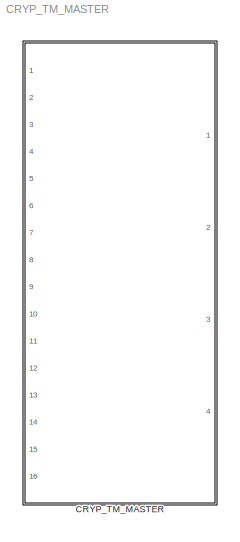
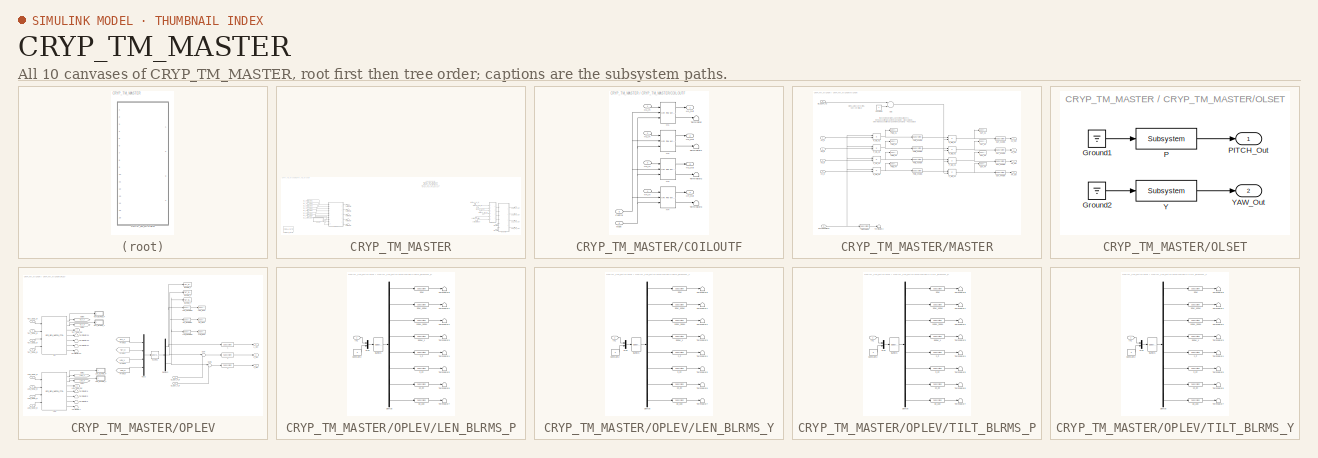
[diagram: thumbnail index - all 10 canvases of the model, root first then tree order]
MODEL CRYP_TM_MASTER
KIND library
BLOCK [SubSystem] CRYP_TM_MASTER
  Ports = [16, 4]
  RequestExecContextInheritance = off
  SID = 310
  Variant = off
BLOCK [Reference] CRYP_TM_MASTER/COILBAL_DATE  REF=VIS_LIB/COILBAL_DATE
  Ports = []
  SID = 1026
  SourceBlock = VIS_LIB/COILBAL_DATE
  SourceType = SubSystem
BLOCK [SubSystem] CRYP_TM_MASTER/COILOUTF
  Ports = [6, 4]
  RequestExecContextInheritance = off
  SID = 350
  Variant = off
BLOCK [Inport] CRYP_TM_MASTER/COILOUTF/Control
  IconDisplay = Port number
  Port = 5
  SID = 685
BLOCK [Reference] CRYP_TM_MASTER/COILOUTF/H1  REF=cdsFiltCtrl/IIR FM with control
  AttributesFormatString = %<Tag>
  Description = cdsFiltCntrl is the standard IIR filter module (exactly the same as cdsFilt) but with added control data output 'Ctrl'. Filter module digital signal output appears on the first output, which is called 'Val'. 'Ctrl' output has a bit pattern encoding the state of filter's on/off switches (FM1 through FM10). The bit values are:\n                                                                        ...<+4621ch>  <repeated x4 — deduplicated; at blocks: H1, H2, H3, H4>
  Ports = [3, 2]
  SID = 687
  SourceBlock = cdsFiltCtrl/IIR FM with control
  SourceType = SubSystem
  Tag = cdsFiltCtrl
BLOCK [Inport] CRYP_TM_MASTER/COILOUTF/H1_In
  IconDisplay = Port number
  SID = 681
BLOCK [Outport] CRYP_TM_MASTER/COILOUTF/H1_Out
  IconDisplay = Port number
  SID = 695
BLOCK [Reference] CRYP_TM_MASTER/COILOUTF/H2  REF=cdsFiltCtrl/IIR FM with control
  AttributesFormatString = %<Tag>
  Ports = [3, 2]
  SID = 688
  SourceBlock = cdsFiltCtrl/IIR FM with control
  SourceType = SubSystem
  Tag = cdsFiltCtrl
BLOCK [Inport] CRYP_TM_MASTER/COILOUTF/H2_In
  IconDisplay = Port number
  Port = 2
  SID = 682
BLOCK [Outport] CRYP_TM_MASTER/COILOUTF/H2_Out
  IconDisplay = Port number
  Port = 2
  SID = 696
BLOCK [Reference] CRYP_TM_MASTER/COILOUTF/H3  REF=cdsFiltCtrl/IIR FM with control
  AttributesFormatString = %<Tag>
  Ports = [3, 2]
  SID = 689
  SourceBlock = cdsFiltCtrl/IIR FM with control
  SourceType = SubSystem
  Tag = cdsFiltCtrl
BLOCK [Inport] CRYP_TM_MASTER/COILOUTF/H3_In
  IconDisplay = Port number
  Port = 3
  SID = 683
BLOCK [Outport] CRYP_TM_MASTER/COILOUTF/H3_Out
  IconDisplay = Port number
  Port = 3
  SID = 697
BLOCK [Reference] CRYP_TM_MASTER/COILOUTF/H4  REF=cdsFiltCtrl/IIR FM with control
  AttributesFormatString = %<Tag>
  Ports = [3, 2]
  SID = 690
  SourceBlock = cdsFiltCtrl/IIR FM with control
  SourceType = SubSystem
  Tag = cdsFiltCtrl
BLOCK [Inport] CRYP_TM_MASTER/COILOUTF/H4_In
  IconDisplay = Port number
  Port = 4
  SID = 684
BLOCK [Outport] CRYP_TM_MASTER/COILOUTF/H4_Out
  IconDisplay = Port number
  Port = 4
  SID = 698
BLOCK [Inport] CRYP_TM_MASTER/COILOUTF/Mask
  IconDisplay = Port number
  Port = 6
  SID = 686
BLOCK [Terminator] CRYP_TM_MASTER/COILOUTF/Terminator
  SID = 691
BLOCK [Terminator] CRYP_TM_MASTER/COILOUTF/Terminator1
  SID = 692
BLOCK [Terminator] CRYP_TM_MASTER/COILOUTF/Terminator2
  SID = 693
BLOCK [Terminator] CRYP_TM_MASTER/COILOUTF/Terminator3
  SID = 694
BLOCK [Outport] CRYP_TM_MASTER/COIL_H1_Out
  IconDisplay = Port number
  SID = 607
BLOCK [Outport] CRYP_TM_MASTER/COIL_H2_Out
  IconDisplay = Port number
  Port = 2
  SID = 608
BLOCK [Outport] CRYP_TM_MASTER/COIL_H3_Out
  IconDisplay = Port number
  Port = 3
  SID = 609
BLOCK [Outport] CRYP_TM_MASTER/COIL_H4_Out
  IconDisplay = Port number
  Port = 4
  SID = 610
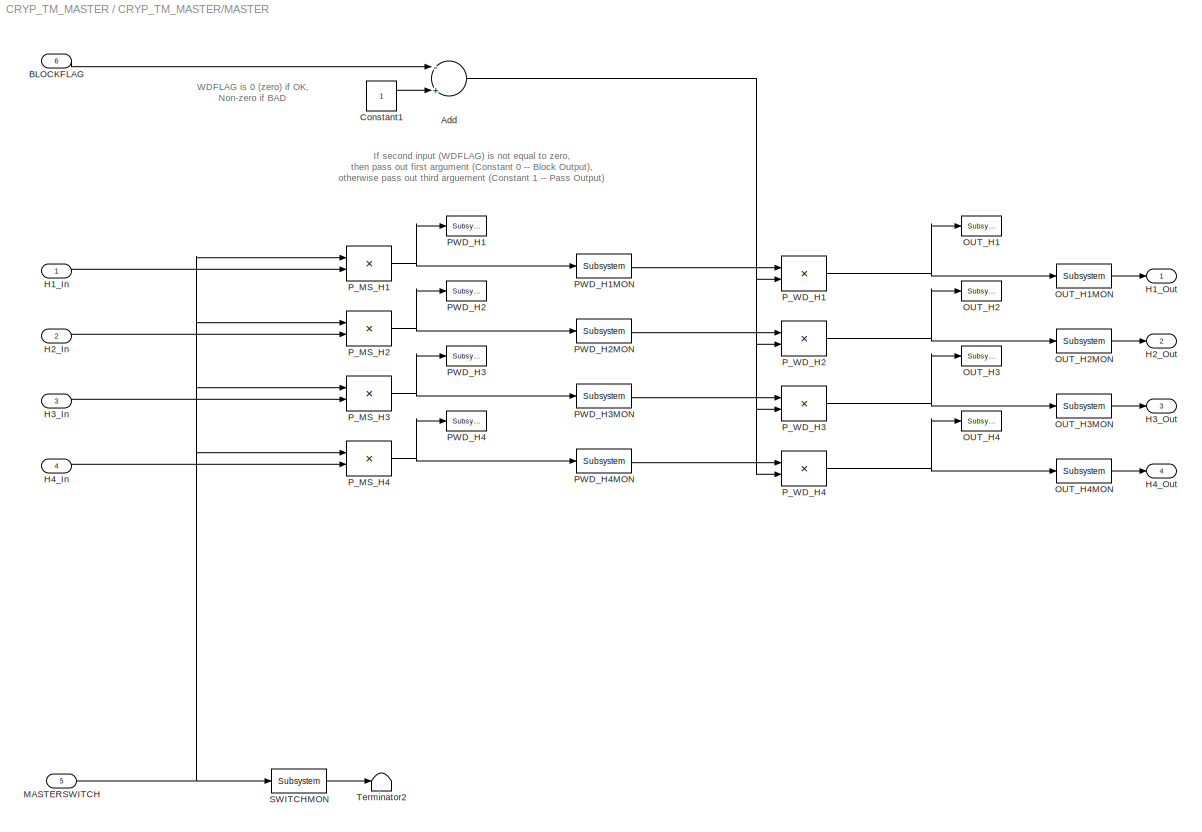
BLOCK [SubSystem] CRYP_TM_MASTER/MASTER
  Ports = [6, 4]
  RequestExecContextInheritance = off
  SID = 450
  Variant = off
BLOCK [Sum] CRYP_TM_MASTER/MASTER/Add
  InputSameDT = off
  Inputs = -+
  OutDataTypeStr = Inherit: Inherit via internal rule
  Ports = [2, 1]
  SID = 756
  SaturateOnIntegerOverflow = off
BLOCK [Inport] CRYP_TM_MASTER/MASTER/BLOCKFLAG
  IconDisplay = Port number
  Port = 6
  SID = 719
BLOCK [Constant] CRYP_TM_MASTER/MASTER/Constant1
  SID = 722
BLOCK [Inport] CRYP_TM_MASTER/MASTER/H1_In
  IconDisplay = Port number
  SID = 714
BLOCK [Outport] CRYP_TM_MASTER/MASTER/H1_Out
  IconDisplay = Port number
  SID = 749
BLOCK [Inport] CRYP_TM_MASTER/MASTER/H2_In
  IconDisplay = Port number
  Port = 2
  SID = 715
BLOCK [Outport] CRYP_TM_MASTER/MASTER/H2_Out
  IconDisplay = Port number
  Port = 2
  SID = 750
BLOCK [Inport] CRYP_TM_MASTER/MASTER/H3_In
  IconDisplay = Port number
  Port = 3
  SID = 716
BLOCK [Outport] CRYP_TM_MASTER/MASTER/H3_Out
  IconDisplay = Port number
  Port = 3
  SID = 751
BLOCK [Inport] CRYP_TM_MASTER/MASTER/H4_In
  IconDisplay = Port number
  Port = 4
  SID = 717
BLOCK [Outport] CRYP_TM_MASTER/MASTER/H4_Out
  IconDisplay = Port number
  Port = 4
  SID = 752
BLOCK [Inport] CRYP_TM_MASTER/MASTER/MASTERSWITCH
  IconDisplay = Port number
  Port = 5
  SID = 718
BLOCK [Reference] CRYP_TM_MASTER/MASTER/OUT_H1  REF=cdsTP/Subsystem
  AttributesFormatString = %<Tag>
  Ports = [1]
  SID = 723
  SourceBlock = cdsTP/Subsystem
  SourceType = SubSystem
  Tag = Test Point
BLOCK [Reference] CRYP_TM_MASTER/MASTER/OUT_H1MON  REF=cdsEpicsOut/Subsystem
  AttributesFormatString = %<Tag>
  Description = Purpose:                                          \nOutput a FE signal to an EPICS channel.           \n                                                  \nOperation:                                        \nTakes input value and passes it to EPICS record.  \n                                                  \nUsage:                                            \nName the part with the desired EPICS...<+14ch>  <repeated x44 — deduplicated; at blocks: OUT_H1MON, OUT_H2MON, OUT_H3MON, OUT_H4MON, PWD_H1MON, PWD_H2MON, PWD_H3MON, PWD_H4MON, SWITCHMON, 100M_300M, 10_30, 1_3, 300M_1, 30M, 30M_100M, 30_100, +4 more>
  Ports = [1, 1]
  SID = 724
  SourceBlock = cdsEpicsOut/Subsystem
  SourceType = SubSystem
  Tag = cdsEpicsOutput
BLOCK [Reference] CRYP_TM_MASTER/MASTER/OUT_H2  REF=cdsTP/Subsystem
  AttributesFormatString = %<Tag>
  Ports = [1]
  SID = 725
  SourceBlock = cdsTP/Subsystem
  SourceType = SubSystem
  Tag = Test Point
BLOCK [Reference] CRYP_TM_MASTER/MASTER/OUT_H2MON  REF=cdsEpicsOut/Subsystem
  AttributesFormatString = %<Tag>
  Ports = [1, 1]
  SID = 726
  SourceBlock = cdsEpicsOut/Subsystem
  SourceType = SubSystem
  Tag = cdsEpicsOutput
BLOCK [Reference] CRYP_TM_MASTER/MASTER/OUT_H3  REF=cdsTP/Subsystem
  AttributesFormatString = %<Tag>
  Ports = [1]
  SID = 727
  SourceBlock = cdsTP/Subsystem
  SourceType = SubSystem
  Tag = Test Point
BLOCK [Reference] CRYP_TM_MASTER/MASTER/OUT_H3MON  REF=cdsEpicsOut/Subsystem
  AttributesFormatString = %<Tag>
  Ports = [1, 1]
  SID = 728
  SourceBlock = cdsEpicsOut/Subsystem
  SourceType = SubSystem
  Tag = cdsEpicsOutput
BLOCK [Reference] CRYP_TM_MASTER/MASTER/OUT_H4  REF=cdsTP/Subsystem
  AttributesFormatString = %<Tag>
  Ports = [1]
  SID = 729
  SourceBlock = cdsTP/Subsystem
  SourceType = SubSystem
  Tag = Test Point
BLOCK [Reference] CRYP_TM_MASTER/MASTER/OUT_H4MON  REF=cdsEpicsOut/Subsystem
  AttributesFormatString = %<Tag>
  Ports = [1, 1]
  SID = 730
  SourceBlock = cdsEpicsOut/Subsystem
  SourceType = SubSystem
  Tag = cdsEpicsOutput
BLOCK [Reference] CRYP_TM_MASTER/MASTER/PWD_H1  REF=cdsTP/Subsystem
  AttributesFormatString = %<Tag>
  Ports = [1]
  SID = 731
  SourceBlock = cdsTP/Subsystem
  SourceType = SubSystem
  Tag = Test Point
BLOCK [Reference] CRYP_TM_MASTER/MASTER/PWD_H1MON  REF=cdsEpicsOut/Subsystem
  AttributesFormatString = %<Tag>
  Ports = [1, 1]
  SID = 732
  SourceBlock = cdsEpicsOut/Subsystem
  SourceType = SubSystem
  Tag = cdsEpicsOutput
BLOCK [Reference] CRYP_TM_MASTER/MASTER/PWD_H2  REF=cdsTP/Subsystem
  AttributesFormatString = %<Tag>
  Ports = [1]
  SID = 733
  SourceBlock = cdsTP/Subsystem
  SourceType = SubSystem
  Tag = Test Point
BLOCK [Reference] CRYP_TM_MASTER/MASTER/PWD_H2MON  REF=cdsEpicsOut/Subsystem
  AttributesFormatString = %<Tag>
  Ports = [1, 1]
  SID = 734
  SourceBlock = cdsEpicsOut/Subsystem
  SourceType = SubSystem
  Tag = cdsEpicsOutput
BLOCK [Reference] CRYP_TM_MASTER/MASTER/PWD_H3  REF=cdsTP/Subsystem
  AttributesFormatString = %<Tag>
  Ports = [1]
  SID = 735
  SourceBlock = cdsTP/Subsystem
  SourceType = SubSystem
  Tag = Test Point
BLOCK [Reference] CRYP_TM_MASTER/MASTER/PWD_H3MON  REF=cdsEpicsOut/Subsystem
  AttributesFormatString = %<Tag>
  Ports = [1, 1]
  SID = 736
  SourceBlock = cdsEpicsOut/Subsystem
  SourceType = SubSystem
  Tag = cdsEpicsOutput
BLOCK [Reference] CRYP_TM_MASTER/MASTER/PWD_H4  REF=cdsTP/Subsystem
  AttributesFormatString = %<Tag>
  Ports = [1]
  SID = 737
  SourceBlock = cdsTP/Subsystem
  SourceType = SubSystem
  Tag = Test Point
BLOCK [Reference] CRYP_TM_MASTER/MASTER/PWD_H4MON  REF=cdsEpicsOut/Subsystem
  AttributesFormatString = %<Tag>
  Ports = [1, 1]
  SID = 738
  SourceBlock = cdsEpicsOut/Subsystem
  SourceType = SubSystem
  Tag = cdsEpicsOutput
BLOCK [Product] CRYP_TM_MASTER/MASTER/P_MS_H1
  InputSameDT = off
  OutDataTypeStr = Inherit: Inherit via internal rule
  Ports = [2, 1]
  SID = 739
  SaturateOnIntegerOverflow = off
BLOCK [Product] CRYP_TM_MASTER/MASTER/P_MS_H2
  InputSameDT = off
  OutDataTypeStr = Inherit: Inherit via internal rule
  Ports = [2, 1]
  SID = 740
  SaturateOnIntegerOverflow = off
BLOCK [Product] CRYP_TM_MASTER/MASTER/P_MS_H3
  InputSameDT = off
  OutDataTypeStr = Inherit: Inherit via internal rule
  Ports = [2, 1]
  SID = 741
  SaturateOnIntegerOverflow = off
BLOCK [Product] CRYP_TM_MASTER/MASTER/P_MS_H4
  InputSameDT = off
  OutDataTypeStr = Inherit: Inherit via internal rule
  Ports = [2, 1]
  SID = 742
  SaturateOnIntegerOverflow = off
BLOCK [Product] CRYP_TM_MASTER/MASTER/P_WD_H1
  InputSameDT = off
  OutDataTypeStr = Inherit: Inherit via internal rule
  Ports = [2, 1]
  SID = 743
  SaturateOnIntegerOverflow = off
BLOCK [Product] CRYP_TM_MASTER/MASTER/P_WD_H2
  InputSameDT = off
  OutDataTypeStr = Inherit: Inherit via internal rule
  Ports = [2, 1]
  SID = 744
  SaturateOnIntegerOverflow = off
BLOCK [Product] CRYP_TM_MASTER/MASTER/P_WD_H3
  InputSameDT = off
  OutDataTypeStr = Inherit: Inherit via internal rule
  Ports = [2, 1]
  SID = 745
  SaturateOnIntegerOverflow = off
BLOCK [Product] CRYP_TM_MASTER/MASTER/P_WD_H4
  InputSameDT = off
  OutDataTypeStr = Inherit: Inherit via internal rule
  Ports = [2, 1]
  SID = 746
  SaturateOnIntegerOverflow = off
BLOCK [Reference] CRYP_TM_MASTER/MASTER/SWITCHMON  REF=cdsEpicsOut/Subsystem
  AttributesFormatString = %<Tag>
  Ports = [1, 1]
  SID = 747
  SourceBlock = cdsEpicsOut/Subsystem
  SourceType = SubSystem
  Tag = cdsEpicsOutput
BLOCK [Terminator] CRYP_TM_MASTER/MASTER/Terminator2
  SID = 748
BLOCK [Inport] CRYP_TM_MASTER/MODAL_H1_In
  IconDisplay = Port number
  Port = 9
  SID = 1015
BLOCK [Inport] CRYP_TM_MASTER/MODAL_H2_In
  IconDisplay = Port number
  Port = 10
  SID = 1016
BLOCK [Inport] CRYP_TM_MASTER/MODAL_H3_In
  IconDisplay = Port number
  Port = 11
  SID = 1017
BLOCK [Inport] CRYP_TM_MASTER/MODAL_H4_In
  IconDisplay = Port number
  Port = 12
  SID = 1024
BLOCK [SubSystem] CRYP_TM_MASTER/OLSET
  Ports = [0, 2]
  RequestExecContextInheritance = off
  SID = 858
  Variant = off
BLOCK [Ground] CRYP_TM_MASTER/OLSET/Ground1
  SID = 866
BLOCK [Ground] CRYP_TM_MASTER/OLSET/Ground2
  SID = 867
BLOCK [Reference] CRYP_TM_MASTER/OLSET/P  REF=cdsFilt/Subsystem
  AttributesFormatString = %<Tag>
  Description = Purpose:                                                                                                                                                                                                                                  \nStandard CDS IIR filter module.                                                                                                                                     ...<+1302ch>  <repeated x5 — deduplicated; at blocks: P, Y, L>
  Ports = [1, 1]
  SID = 869
  SourceBlock = cdsFilt/Subsystem
  SourceType = SubSystem
  Tag = cdsFilt
BLOCK [Outport] CRYP_TM_MASTER/OLSET/PITCH_Out
  IconDisplay = Port number
  SID = 872
BLOCK [Reference] CRYP_TM_MASTER/OLSET/Y  REF=cdsFilt/Subsystem
  AttributesFormatString = %<Tag>
  Ports = [1, 1]
  SID = 870
  SourceBlock = cdsFilt/Subsystem
  SourceType = SubSystem
  Tag = cdsFilt
BLOCK [Outport] CRYP_TM_MASTER/OLSET/YAW_Out
  IconDisplay = Port number
  Port = 2
  SID = 873
BLOCK [Inport] CRYP_TM_MASTER/OL_LEN_SEG1
  IconDisplay = Port number
  Port = 5
  SID = 315
BLOCK [Inport] CRYP_TM_MASTER/OL_LEN_SEG2
  IconDisplay = Port number
  Port = 6
  SID = 316
BLOCK [Inport] CRYP_TM_MASTER/OL_LEN_SEG3
  IconDisplay = Port number
  Port = 7
  SID = 317
BLOCK [Inport] CRYP_TM_MASTER/OL_LEN_SEG4
  IconDisplay = Port number
  Port = 8
  SID = 318
BLOCK [Inport] CRYP_TM_MASTER/OL_TILT_SEG1
  IconDisplay = Port number
  SID = 311
BLOCK [Inport] CRYP_TM_MASTER/OL_TILT_SEG2
  IconDisplay = Port number
  Port = 2
  SID = 312
BLOCK [Inport] CRYP_TM_MASTER/OL_TILT_SEG3
  IconDisplay = Port number
  Port = 3
  SID = 313
BLOCK [Inport] CRYP_TM_MASTER/OL_TILT_SEG4
  IconDisplay = Port number
  Port = 4
  SID = 314
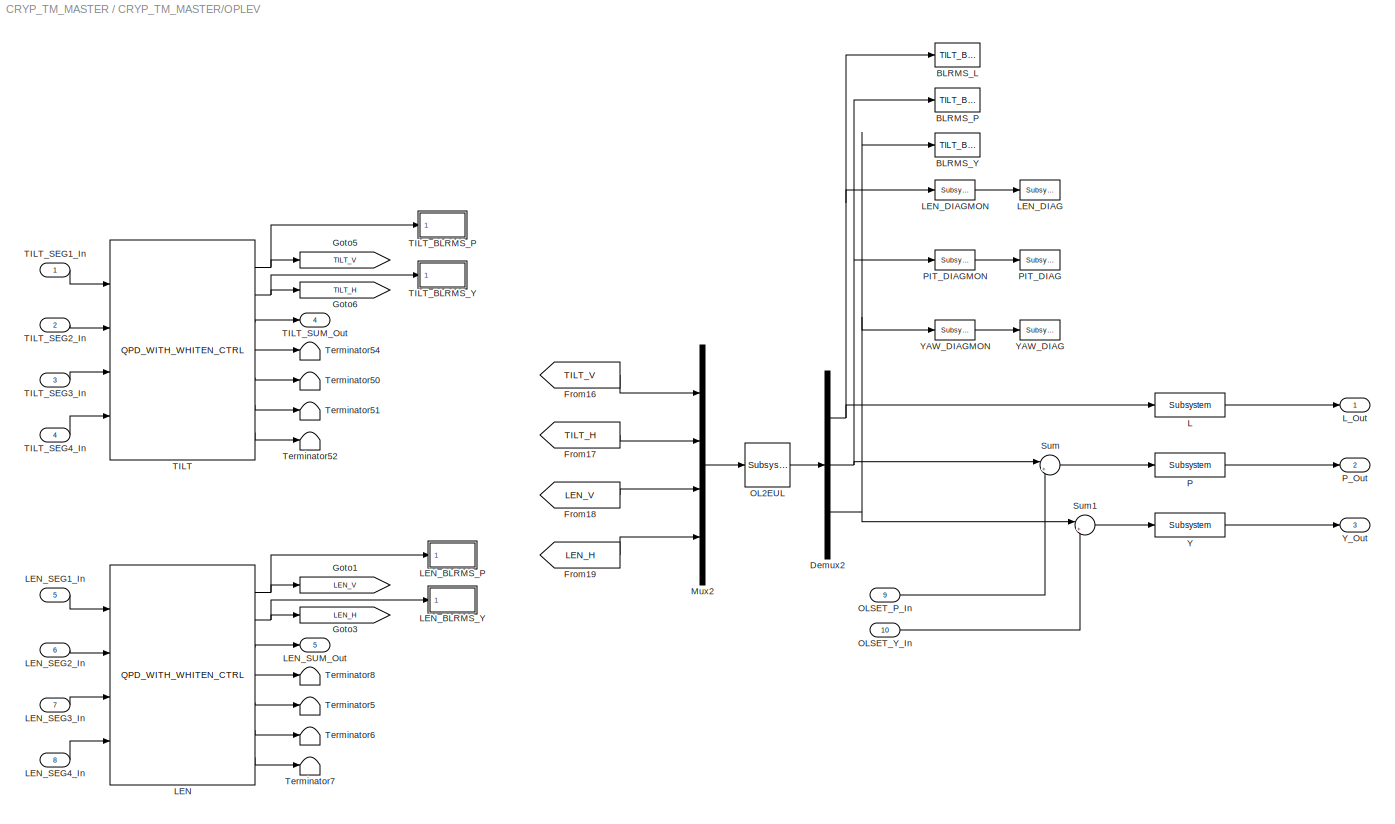
BLOCK [SubSystem] CRYP_TM_MASTER/OPLEV
  Ports = [10, 5]
  RequestExecContextInheritance = off
  SID = 457
  Variant = off
BLOCK [Reference] CRYP_TM_MASTER/OPLEV/BLRMS_L  REF=CRYP_TM_MASTER/CRYP_TM_MASTER/OPLEV/TILT_BLRMS_P
  Ports = [1]
  SID = 917
  SourceBlock = CRYP_TM_MASTER/CRYP_TM_MASTER/OPLEV/TILT_BLRMS_P
  SourceType = SubSystem
BLOCK [Reference] CRYP_TM_MASTER/OPLEV/BLRMS_P  REF=CRYP_TM_MASTER/CRYP_TM_MASTER/OPLEV/TILT_BLRMS_P
  Ports = [1]
  SID = 918
  SourceBlock = CRYP_TM_MASTER/CRYP_TM_MASTER/OPLEV/TILT_BLRMS_P
  SourceType = SubSystem
BLOCK [Reference] CRYP_TM_MASTER/OPLEV/BLRMS_Y  REF=CRYP_TM_MASTER/CRYP_TM_MASTER/OPLEV/TILT_BLRMS_P
  Ports = [1]
  SID = 919
  SourceBlock = CRYP_TM_MASTER/CRYP_TM_MASTER/OPLEV/TILT_BLRMS_P
  SourceType = SubSystem
BLOCK [Demux] CRYP_TM_MASTER/OPLEV/Demux2
  DisplayOption = bar
  Outputs = 3
  Ports = [1, 3]
  SID = 466
BLOCK [From] CRYP_TM_MASTER/OPLEV/From16
  CloseFcn = tagdialog Close
  GotoTag = TILT_V
  SID = 467
BLOCK [From] CRYP_TM_MASTER/OPLEV/From17
  CloseFcn = tagdialog Close
  GotoTag = TILT_H
  SID = 468
BLOCK [From] CRYP_TM_MASTER/OPLEV/From18
  CloseFcn = tagdialog Close
  GotoTag = LEN_V
  SID = 469
BLOCK [From] CRYP_TM_MASTER/OPLEV/From19
  CloseFcn = tagdialog Close
  GotoTag = LEN_H
  SID = 470
BLOCK [Goto] CRYP_TM_MASTER/OPLEV/Goto1
  GotoTag = LEN_V
  SID = 471
BLOCK [Goto] CRYP_TM_MASTER/OPLEV/Goto3
  GotoTag = LEN_H
  SID = 472
BLOCK [Goto] CRYP_TM_MASTER/OPLEV/Goto5
  GotoTag = TILT_V
  SID = 473
BLOCK [Goto] CRYP_TM_MASTER/OPLEV/Goto6
  GotoTag = TILT_H
  SID = 474
BLOCK [Reference] CRYP_TM_MASTER/OPLEV/L  REF=cdsFilt/Subsystem
  AttributesFormatString = %<Tag>
  Ports = [1, 1]
  SID = 854
  SourceBlock = cdsFilt/Subsystem
  SourceType = SubSystem
  Tag = cdsFilt
BLOCK [Reference] CRYP_TM_MASTER/OPLEV/LEN  REF=QPD/QPD_WITH_WHITEN_CTRL
  Ports = [4, 7]
  SID = 475
  SourceBlock = QPD/QPD_WITH_WHITEN_CTRL
  SourceType = SubSystem
BLOCK [SubSystem] CRYP_TM_MASTER/OPLEV/LEN_BLRMS_P
  Ports = [1]
  RequestExecContextInheritance = off
  SID = 959
  Variant = off
BLOCK [Reference] CRYP_TM_MASTER/OPLEV/LEN_BLRMS_P/100M_300M  REF=cdsEpicsOut/Subsystem
  AttributesFormatString = %<Tag>
  Ports = [1, 1]
  SID = 961
  SourceBlock = cdsEpicsOut/Subsystem
  SourceType = SubSystem
  Tag = cdsEpicsOutput
BLOCK [Reference] CRYP_TM_MASTER/OPLEV/LEN_BLRMS_P/10_30  REF=cdsEpicsOut/Subsystem
  AttributesFormatString = %<Tag>
  Ports = [1, 1]
  SID = 962
  SourceBlock = cdsEpicsOut/Subsystem
  SourceType = SubSystem
  Tag = cdsEpicsOutput
BLOCK [Reference] CRYP_TM_MASTER/OPLEV/LEN_BLRMS_P/1_3  REF=cdsEpicsOut/Subsystem
  AttributesFormatString = %<Tag>
  Ports = [1, 1]
  SID = 963
  SourceBlock = cdsEpicsOut/Subsystem
  SourceType = SubSystem
  Tag = cdsEpicsOutput
BLOCK [Reference] CRYP_TM_MASTER/OPLEV/LEN_BLRMS_P/300M_1  REF=cdsEpicsOut/Subsystem
  AttributesFormatString = %<Tag>
  Ports = [1, 1]
  SID = 964
  SourceBlock = cdsEpicsOut/Subsystem
  SourceType = SubSystem
  Tag = cdsEpicsOutput
BLOCK [Reference] CRYP_TM_MASTER/OPLEV/LEN_BLRMS_P/30M  REF=cdsEpicsOut/Subsystem
  AttributesFormatString = %<Tag>
  Ports = [1, 1]
  SID = 965
  SourceBlock = cdsEpicsOut/Subsystem
  SourceType = SubSystem
  Tag = cdsEpicsOutput
BLOCK [Reference] CRYP_TM_MASTER/OPLEV/LEN_BLRMS_P/30M_100M  REF=cdsEpicsOut/Subsystem
  AttributesFormatString = %<Tag>
  Ports = [1, 1]
  SID = 966
  SourceBlock = cdsEpicsOut/Subsystem
  SourceType = SubSystem
  Tag = cdsEpicsOutput
BLOCK [Reference] CRYP_TM_MASTER/OPLEV/LEN_BLRMS_P/30_100  REF=cdsEpicsOut/Subsystem
  AttributesFormatString = %<Tag>
  Ports = [1, 1]
  SID = 967
  SourceBlock = cdsEpicsOut/Subsystem
  SourceType = SubSystem
  Tag = cdsEpicsOutput
BLOCK [Reference] CRYP_TM_MASTER/OPLEV/LEN_BLRMS_P/3_10  REF=cdsEpicsOut/Subsystem
  AttributesFormatString = %<Tag>
  Ports = [1, 1]
  SID = 968
  SourceBlock = cdsEpicsOut/Subsystem
  SourceType = SubSystem
  Tag = cdsEpicsOutput
BLOCK [Reference] CRYP_TM_MASTER/OPLEV/LEN_BLRMS_P/BLRMS  REF=cdsFunctionCall/Subsystem
  AttributesFormatString = %<Tag>\\n%<Description>
  Description = inline BLRMS <path>
  Ports = [1, 1]
  SID = 969
  SourceBlock = cdsFunctionCall/Subsystem
  SourceType = SubSystem
  Tag = cdsFunctionCall
BLOCK [Constant] CRYP_TM_MASTER/OPLEV/LEN_BLRMS_P/Constant2
  SID = 970
  Value = 2
BLOCK [Demux] CRYP_TM_MASTER/OPLEV/LEN_BLRMS_P/Demux
  DisplayOption = bar
  Outputs = 8
  Ports = [1, 8]
  SID = 971
BLOCK [Inport] CRYP_TM_MASTER/OPLEV/LEN_BLRMS_P/In1
  IconDisplay = Port number
  SID = 960
BLOCK [Mux] CRYP_TM_MASTER/OPLEV/LEN_BLRMS_P/Mux
  DisplayOption = bar
  Inputs = 2
  Ports = [2, 1]
  SID = 972
BLOCK [Terminator] CRYP_TM_MASTER/OPLEV/LEN_BLRMS_P/Terminator1
  SID = 973
BLOCK [Terminator] CRYP_TM_MASTER/OPLEV/LEN_BLRMS_P/Terminator2
  SID = 974
BLOCK [Terminator] CRYP_TM_MASTER/OPLEV/LEN_BLRMS_P/Terminator3
  SID = 975
BLOCK [Terminator] CRYP_TM_MASTER/OPLEV/LEN_BLRMS_P/Terminator4
  SID = 976
BLOCK [Terminator] CRYP_TM_MASTER/OPLEV/LEN_BLRMS_P/Terminator5
  SID = 977
BLOCK [Terminator] CRYP_TM_MASTER/OPLEV/LEN_BLRMS_P/Terminator6
  SID = 978
BLOCK [Terminator] CRYP_TM_MASTER/OPLEV/LEN_BLRMS_P/Terminator7
  SID = 979
BLOCK [Terminator] CRYP_TM_MASTER/OPLEV/LEN_BLRMS_P/Terminator8
  SID = 980
BLOCK [SubSystem] CRYP_TM_MASTER/OPLEV/LEN_BLRMS_Y
  Ports = [1]
  RequestExecContextInheritance = off
  SID = 981
  Variant = off
BLOCK [Reference] CRYP_TM_MASTER/OPLEV/LEN_BLRMS_Y/100M_300M  REF=cdsEpicsOut/Subsystem
  AttributesFormatString = %<Tag>
  Ports = [1, 1]
  SID = 983
  SourceBlock = cdsEpicsOut/Subsystem
  SourceType = SubSystem
  Tag = cdsEpicsOutput
BLOCK [Reference] CRYP_TM_MASTER/OPLEV/LEN_BLRMS_Y/10_30  REF=cdsEpicsOut/Subsystem
  AttributesFormatString = %<Tag>
  Ports = [1, 1]
  SID = 984
  SourceBlock = cdsEpicsOut/Subsystem
  SourceType = SubSystem
  Tag = cdsEpicsOutput
BLOCK [Reference] CRYP_TM_MASTER/OPLEV/LEN_BLRMS_Y/1_3  REF=cdsEpicsOut/Subsystem
  AttributesFormatString = %<Tag>
  Ports = [1, 1]
  SID = 985
  SourceBlock = cdsEpicsOut/Subsystem
  SourceType = SubSystem
  Tag = cdsEpicsOutput
BLOCK [Reference] CRYP_TM_MASTER/OPLEV/LEN_BLRMS_Y/300M_1  REF=cdsEpicsOut/Subsystem
  AttributesFormatString = %<Tag>
  Ports = [1, 1]
  SID = 986
  SourceBlock = cdsEpicsOut/Subsystem
  SourceType = SubSystem
  Tag = cdsEpicsOutput
BLOCK [Reference] CRYP_TM_MASTER/OPLEV/LEN_BLRMS_Y/30M  REF=cdsEpicsOut/Subsystem
  AttributesFormatString = %<Tag>
  Ports = [1, 1]
  SID = 987
  SourceBlock = cdsEpicsOut/Subsystem
  SourceType = SubSystem
  Tag = cdsEpicsOutput
BLOCK [Reference] CRYP_TM_MASTER/OPLEV/LEN_BLRMS_Y/30M_100M  REF=cdsEpicsOut/Subsystem
  AttributesFormatString = %<Tag>
  Ports = [1, 1]
  SID = 988
  SourceBlock = cdsEpicsOut/Subsystem
  SourceType = SubSystem
  Tag = cdsEpicsOutput
BLOCK [Reference] CRYP_TM_MASTER/OPLEV/LEN_BLRMS_Y/30_100  REF=cdsEpicsOut/Subsystem
  AttributesFormatString = %<Tag>
  Ports = [1, 1]
  SID = 989
  SourceBlock = cdsEpicsOut/Subsystem
  SourceType = SubSystem
  Tag = cdsEpicsOutput
BLOCK [Reference] CRYP_TM_MASTER/OPLEV/LEN_BLRMS_Y/3_10  REF=cdsEpicsOut/Subsystem
  AttributesFormatString = %<Tag>
  Ports = [1, 1]
  SID = 990
  SourceBlock = cdsEpicsOut/Subsystem
  SourceType = SubSystem
  Tag = cdsEpicsOutput
BLOCK [Reference] CRYP_TM_MASTER/OPLEV/LEN_BLRMS_Y/BLRMS  REF=cdsFunctionCall/Subsystem
  AttributesFormatString = %<Tag>\\n%<Description>
  Description = inline BLRMS <path>
  Ports = [1, 1]
  SID = 991
  SourceBlock = cdsFunctionCall/Subsystem
  SourceType = SubSystem
  Tag = cdsFunctionCall
BLOCK [Constant] CRYP_TM_MASTER/OPLEV/LEN_BLRMS_Y/Constant2
  SID = 992
  Value = 2
BLOCK [Demux] CRYP_TM_MASTER/OPLEV/LEN_BLRMS_Y/Demux
  DisplayOption = bar
  Outputs = 8
  Ports = [1, 8]
  SID = 993
BLOCK [Inport] CRYP_TM_MASTER/OPLEV/LEN_BLRMS_Y/In1
  IconDisplay = Port number
  SID = 982
BLOCK [Mux] CRYP_TM_MASTER/OPLEV/LEN_BLRMS_Y/Mux
  DisplayOption = bar
  Inputs = 2
  Ports = [2, 1]
  SID = 994
BLOCK [Terminator] CRYP_TM_MASTER/OPLEV/LEN_BLRMS_Y/Terminator1
  SID = 995
BLOCK [Terminator] CRYP_TM_MASTER/OPLEV/LEN_BLRMS_Y/Terminator2
  SID = 996
BLOCK [Terminator] CRYP_TM_MASTER/OPLEV/LEN_BLRMS_Y/Terminator3
  SID = 997
BLOCK [Terminator] CRYP_TM_MASTER/OPLEV/LEN_BLRMS_Y/Terminator4
  SID = 998
BLOCK [Terminator] CRYP_TM_MASTER/OPLEV/LEN_BLRMS_Y/Terminator5
  SID = 999
BLOCK [Terminator] CRYP_TM_MASTER/OPLEV/LEN_BLRMS_Y/Terminator6
  SID = 1000
BLOCK [Terminator] CRYP_TM_MASTER/OPLEV/LEN_BLRMS_Y/Terminator7
  SID = 1001
BLOCK [Terminator] CRYP_TM_MASTER/OPLEV/LEN_BLRMS_Y/Terminator8
  SID = 1002
BLOCK [Reference] CRYP_TM_MASTER/OPLEV/LEN_DIAG  REF=cdsTP/Subsystem
  AttributesFormatString = %<Tag>
  Ports = [1]
  SID = 848
  SourceBlock = cdsTP/Subsystem
  SourceType = SubSystem
  Tag = Test Point
BLOCK [Reference] CRYP_TM_MASTER/OPLEV/LEN_DIAGMON  REF=cdsEpicsOut/Subsystem
  AttributesFormatString = %<Tag>
  Ports = [1, 1]
  SID = 849
  SourceBlock = cdsEpicsOut/Subsystem
  SourceType = SubSystem
  Tag = cdsEpicsOutput
BLOCK [Inport] CRYP_TM_MASTER/OPLEV/LEN_SEG1_In
  IconDisplay = Port number
  Port = 5
  SID = 462
BLOCK [Inport] CRYP_TM_MASTER/OPLEV/LEN_SEG2_In
  IconDisplay = Port number
  Port = 6
  SID = 463
BLOCK [Inport] CRYP_TM_MASTER/OPLEV/LEN_SEG3_In
  IconDisplay = Port number
  Port = 7
  SID = 464
BLOCK [Inport] CRYP_TM_MASTER/OPLEV/LEN_SEG4_In
  IconDisplay = Port number
  Port = 8
  SID = 465
BLOCK [Outport] CRYP_TM_MASTER/OPLEV/LEN_SUM_Out
  IconDisplay = Port number
  Port = 5
  SID = 537
BLOCK [Outport] CRYP_TM_MASTER/OPLEV/L_Out
  IconDisplay = Port number
  SID = 533
BLOCK [Mux] CRYP_TM_MASTER/OPLEV/Mux2
  DisplayOption = bar
  Ports = [4, 1]
  SID = 478
BLOCK [Reference] CRYP_TM_MASTER/OPLEV/OL2EUL  REF=cdsMuxMatrix/Subsystem
  AttributesFormatString = %<Tag>
  Description = Any size matrix. Inputs and outputs must be connected using Mux and Demux parts.
  Ports = [1, 1]
  SID = 479
  SourceBlock = cdsMuxMatrix/Subsystem
  SourceType = SubSystem
  Tag = cdsMuxMatrix
BLOCK [Inport] CRYP_TM_MASTER/OPLEV/OLSET_P_In
  IconDisplay = Port number
  Port = 9
  SID = 861
BLOCK [Inport] CRYP_TM_MASTER/OPLEV/OLSET_Y_In
  IconDisplay = Port number
  Port = 10
  SID = 862
BLOCK [Reference] CRYP_TM_MASTER/OPLEV/P  REF=cdsFilt/Subsystem
  AttributesFormatString = %<Tag>
  Ports = [1, 1]
  SID = 845
  SourceBlock = cdsFilt/Subsystem
  SourceType = SubSystem
  Tag = cdsFilt
BLOCK [Reference] CRYP_TM_MASTER/OPLEV/PIT_DIAG  REF=cdsTP/Subsystem
  AttributesFormatString = %<Tag>
  Ports = [1]
  SID = 850
  SourceBlock = cdsTP/Subsystem
  SourceType = SubSystem
  Tag = Test Point
BLOCK [Reference] CRYP_TM_MASTER/OPLEV/PIT_DIAGMON  REF=cdsEpicsOut/Subsystem
  AttributesFormatString = %<Tag>
  Ports = [1, 1]
  SID = 851
  SourceBlock = cdsEpicsOut/Subsystem
  SourceType = SubSystem
  Tag = cdsEpicsOutput
BLOCK [Outport] CRYP_TM_MASTER/OPLEV/P_Out
  IconDisplay = Port number
  Port = 2
  SID = 534
BLOCK [Sum] CRYP_TM_MASTER/OPLEV/Sum
  IconShape = round
  InputSameDT = off
  Inputs = |+-
  OutDataTypeStr = Inherit: Inherit via internal rule
  Ports = [2, 1]
  SID = 874
  SaturateOnIntegerOverflow = off
BLOCK [Sum] CRYP_TM_MASTER/OPLEV/Sum1
  IconShape = round
  InputSameDT = off
  Inputs = |+-
  OutDataTypeStr = Inherit: Inherit via internal rule
  Ports = [2, 1]
  SID = 875
  SaturateOnIntegerOverflow = off
BLOCK [Reference] CRYP_TM_MASTER/OPLEV/TILT  REF=QPD/QPD_WITH_WHITEN_CTRL
  Ports = [4, 7]
  SID = 480
  SourceBlock = QPD/QPD_WITH_WHITEN_CTRL
  SourceType = SubSystem
BLOCK [SubSystem] CRYP_TM_MASTER/OPLEV/TILT_BLRMS_P
  Ports = [1]
  RequestExecContextInheritance = off
  SID = 481
  Variant = off
BLOCK [Reference] CRYP_TM_MASTER/OPLEV/TILT_BLRMS_P/100M_300M  REF=cdsEpicsOut/Subsystem
  AttributesFormatString = %<Tag>
  Ports = [1, 1]
  SID = 483
  SourceBlock = cdsEpicsOut/Subsystem
  SourceType = SubSystem
  Tag = cdsEpicsOutput
BLOCK [Reference] CRYP_TM_MASTER/OPLEV/TILT_BLRMS_P/10_30  REF=cdsEpicsOut/Subsystem
  AttributesFormatString = %<Tag>
  Ports = [1, 1]
  SID = 484
  SourceBlock = cdsEpicsOut/Subsystem
  SourceType = SubSystem
  Tag = cdsEpicsOutput
BLOCK [Reference] CRYP_TM_MASTER/OPLEV/TILT_BLRMS_P/1_3  REF=cdsEpicsOut/Subsystem
  AttributesFormatString = %<Tag>
  Ports = [1, 1]
  SID = 485
  SourceBlock = cdsEpicsOut/Subsystem
  SourceType = SubSystem
  Tag = cdsEpicsOutput
BLOCK [Reference] CRYP_TM_MASTER/OPLEV/TILT_BLRMS_P/300M_1  REF=cdsEpicsOut/Subsystem
  AttributesFormatString = %<Tag>
  Ports = [1, 1]
  SID = 486
  SourceBlock = cdsEpicsOut/Subsystem
  SourceType = SubSystem
  Tag = cdsEpicsOutput
BLOCK [Reference] CRYP_TM_MASTER/OPLEV/TILT_BLRMS_P/30M  REF=cdsEpicsOut/Subsystem
  AttributesFormatString = %<Tag>
  Ports = [1, 1]
  SID = 487
  SourceBlock = cdsEpicsOut/Subsystem
  SourceType = SubSystem
  Tag = cdsEpicsOutput
BLOCK [Reference] CRYP_TM_MASTER/OPLEV/TILT_BLRMS_P/30M_100M  REF=cdsEpicsOut/Subsystem
  AttributesFormatString = %<Tag>
  Ports = [1, 1]
  SID = 488
  SourceBlock = cdsEpicsOut/Subsystem
  SourceType = SubSystem
  Tag = cdsEpicsOutput
BLOCK [Reference] CRYP_TM_MASTER/OPLEV/TILT_BLRMS_P/30_100  REF=cdsEpicsOut/Subsystem
  AttributesFormatString = %<Tag>
  Ports = [1, 1]
  SID = 489
  SourceBlock = cdsEpicsOut/Subsystem
  SourceType = SubSystem
  Tag = cdsEpicsOutput
BLOCK [Reference] CRYP_TM_MASTER/OPLEV/TILT_BLRMS_P/3_10  REF=cdsEpicsOut/Subsystem
  AttributesFormatString = %<Tag>
  Ports = [1, 1]
  SID = 490
  SourceBlock = cdsEpicsOut/Subsystem
  SourceType = SubSystem
  Tag = cdsEpicsOutput
BLOCK [Reference] CRYP_TM_MASTER/OPLEV/TILT_BLRMS_P/BLRMS  REF=cdsFunctionCall/Subsystem
  AttributesFormatString = %<Tag>\\n%<Description>
  Description = inline BLRMS <path>
  Ports = [1, 1]
  SID = 491
  SourceBlock = cdsFunctionCall/Subsystem
  SourceType = SubSystem
  Tag = cdsFunctionCall
BLOCK [Constant] CRYP_TM_MASTER/OPLEV/TILT_BLRMS_P/Constant2
  SID = 492
  Value = 2
BLOCK [Demux] CRYP_TM_MASTER/OPLEV/TILT_BLRMS_P/Demux
  DisplayOption = bar
  Outputs = 8
  Ports = [1, 8]
  SID = 493
BLOCK [Inport] CRYP_TM_MASTER/OPLEV/TILT_BLRMS_P/In1
  IconDisplay = Port number
  SID = 482
BLOCK [Mux] CRYP_TM_MASTER/OPLEV/TILT_BLRMS_P/Mux
  DisplayOption = bar
  Inputs = 2
  Ports = [2, 1]
  SID = 494
BLOCK [Terminator] CRYP_TM_MASTER/OPLEV/TILT_BLRMS_P/Terminator1
  SID = 495
BLOCK [Terminator] CRYP_TM_MASTER/OPLEV/TILT_BLRMS_P/Terminator2
  SID = 496
BLOCK [Terminator] CRYP_TM_MASTER/OPLEV/TILT_BLRMS_P/Terminator3
  SID = 497
BLOCK [Terminator] CRYP_TM_MASTER/OPLEV/TILT_BLRMS_P/Terminator4
  SID = 498
BLOCK [Terminator] CRYP_TM_MASTER/OPLEV/TILT_BLRMS_P/Terminator5
  SID = 499
BLOCK [Terminator] CRYP_TM_MASTER/OPLEV/TILT_BLRMS_P/Terminator6
  SID = 500
BLOCK [Terminator] CRYP_TM_MASTER/OPLEV/TILT_BLRMS_P/Terminator7
  SID = 501
BLOCK [Terminator] CRYP_TM_MASTER/OPLEV/TILT_BLRMS_P/Terminator8
  SID = 502
BLOCK [SubSystem] CRYP_TM_MASTER/OPLEV/TILT_BLRMS_Y
  Ports = [1]
  RequestExecContextInheritance = off
  SID = 503
  Variant = off
BLOCK [Reference] CRYP_TM_MASTER/OPLEV/TILT_BLRMS_Y/100M_300M  REF=cdsEpicsOut/Subsystem
  AttributesFormatString = %<Tag>
  Ports = [1, 1]
  SID = 505
  SourceBlock = cdsEpicsOut/Subsystem
  SourceType = SubSystem
  Tag = cdsEpicsOutput
BLOCK [Reference] CRYP_TM_MASTER/OPLEV/TILT_BLRMS_Y/10_30  REF=cdsEpicsOut/Subsystem
  AttributesFormatString = %<Tag>
  Ports = [1, 1]
  SID = 506
  SourceBlock = cdsEpicsOut/Subsystem
  SourceType = SubSystem
  Tag = cdsEpicsOutput
BLOCK [Reference] CRYP_TM_MASTER/OPLEV/TILT_BLRMS_Y/1_3  REF=cdsEpicsOut/Subsystem
  AttributesFormatString = %<Tag>
  Ports = [1, 1]
  SID = 507
  SourceBlock = cdsEpicsOut/Subsystem
  SourceType = SubSystem
  Tag = cdsEpicsOutput
BLOCK [Reference] CRYP_TM_MASTER/OPLEV/TILT_BLRMS_Y/300M_1  REF=cdsEpicsOut/Subsystem
  AttributesFormatString = %<Tag>
  Ports = [1, 1]
  SID = 508
  SourceBlock = cdsEpicsOut/Subsystem
  SourceType = SubSystem
  Tag = cdsEpicsOutput
BLOCK [Reference] CRYP_TM_MASTER/OPLEV/TILT_BLRMS_Y/30M  REF=cdsEpicsOut/Subsystem
  AttributesFormatString = %<Tag>
  Ports = [1, 1]
  SID = 509
  SourceBlock = cdsEpicsOut/Subsystem
  SourceType = SubSystem
  Tag = cdsEpicsOutput
BLOCK [Reference] CRYP_TM_MASTER/OPLEV/TILT_BLRMS_Y/30M_100M  REF=cdsEpicsOut/Subsystem
  AttributesFormatString = %<Tag>
  Ports = [1, 1]
  SID = 510
  SourceBlock = cdsEpicsOut/Subsystem
  SourceType = SubSystem
  Tag = cdsEpicsOutput
BLOCK [Reference] CRYP_TM_MASTER/OPLEV/TILT_BLRMS_Y/30_100  REF=cdsEpicsOut/Subsystem
  AttributesFormatString = %<Tag>
  Ports = [1, 1]
  SID = 511
  SourceBlock = cdsEpicsOut/Subsystem
  SourceType = SubSystem
  Tag = cdsEpicsOutput
BLOCK [Reference] CRYP_TM_MASTER/OPLEV/TILT_BLRMS_Y/3_10  REF=cdsEpicsOut/Subsystem
  AttributesFormatString = %<Tag>
  Ports = [1, 1]
  SID = 512
  SourceBlock = cdsEpicsOut/Subsystem
  SourceType = SubSystem
  Tag = cdsEpicsOutput
BLOCK [Reference] CRYP_TM_MASTER/OPLEV/TILT_BLRMS_Y/BLRMS  REF=cdsFunctionCall/Subsystem
  AttributesFormatString = %<Tag>\\n%<Description>
  Description = inline BLRMS <path>
  Ports = [1, 1]
  SID = 513
  SourceBlock = cdsFunctionCall/Subsystem
  SourceType = SubSystem
  Tag = cdsFunctionCall
BLOCK [Constant] CRYP_TM_MASTER/OPLEV/TILT_BLRMS_Y/Constant2
  SID = 514
  Value = 2
BLOCK [Demux] CRYP_TM_MASTER/OPLEV/TILT_BLRMS_Y/Demux
  DisplayOption = bar
  Outputs = 8
  Ports = [1, 8]
  SID = 515
BLOCK [Inport] CRYP_TM_MASTER/OPLEV/TILT_BLRMS_Y/In1
  IconDisplay = Port number
  SID = 504
BLOCK [Mux] CRYP_TM_MASTER/OPLEV/TILT_BLRMS_Y/Mux
  DisplayOption = bar
  Inputs = 2
  Ports = [2, 1]
  SID = 516
BLOCK [Terminator] CRYP_TM_MASTER/OPLEV/TILT_BLRMS_Y/Terminator1
  SID = 517
BLOCK [Terminator] CRYP_TM_MASTER/OPLEV/TILT_BLRMS_Y/Terminator2
  SID = 518
BLOCK [Terminator] CRYP_TM_MASTER/OPLEV/TILT_BLRMS_Y/Terminator3
  SID = 519
BLOCK [Terminator] CRYP_TM_MASTER/OPLEV/TILT_BLRMS_Y/Terminator4
  SID = 520
BLOCK [Terminator] CRYP_TM_MASTER/OPLEV/TILT_BLRMS_Y/Terminator5
  SID = 521
BLOCK [Terminator] CRYP_TM_MASTER/OPLEV/TILT_BLRMS_Y/Terminator6
  SID = 522
BLOCK [Terminator] CRYP_TM_MASTER/OPLEV/TILT_BLRMS_Y/Terminator7
  SID = 523
BLOCK [Terminator] CRYP_TM_MASTER/OPLEV/TILT_BLRMS_Y/Terminator8
  SID = 524
BLOCK [Inport] CRYP_TM_MASTER/OPLEV/TILT_SEG1_In
  IconDisplay = Port number
  SID = 458
BLOCK [Inport] CRYP_TM_MASTER/OPLEV/TILT_SEG2_In
  IconDisplay = Port number
  Port = 2
  SID = 459
BLOCK [Inport] CRYP_TM_MASTER/OPLEV/TILT_SEG3_In
  IconDisplay = Port number
  Port = 3
  SID = 460
BLOCK [Inport] CRYP_TM_MASTER/OPLEV/TILT_SEG4_In
  IconDisplay = Port number
  Port = 4
  SID = 461
BLOCK [Outport] CRYP_TM_MASTER/OPLEV/TILT_SUM_Out
  IconDisplay = Port number
  Port = 4
  SID = 536
BLOCK [Terminator] CRYP_TM_MASTER/OPLEV/Terminator5
  SID = 525
BLOCK [Terminator] CRYP_TM_MASTER/OPLEV/Terminator50
  SID = 526
BLOCK [Terminator] CRYP_TM_MASTER/OPLEV/Terminator51
  SID = 527
BLOCK [Terminator] CRYP_TM_MASTER/OPLEV/Terminator52
  SID = 528
BLOCK [Terminator] CRYP_TM_MASTER/OPLEV/Terminator54
  SID = 529
BLOCK [Terminator] CRYP_TM_MASTER/OPLEV/Terminator6
  SID = 530
BLOCK [Terminator] CRYP_TM_MASTER/OPLEV/Terminator7
  SID = 531
BLOCK [Terminator] CRYP_TM_MASTER/OPLEV/Terminator8
  SID = 532
BLOCK [Reference] CRYP_TM_MASTER/OPLEV/Y  REF=cdsFilt/Subsystem
  AttributesFormatString = %<Tag>
  Ports = [1, 1]
  SID = 846
  SourceBlock = cdsFilt/Subsystem
  SourceType = SubSystem
  Tag = cdsFilt
BLOCK [Reference] CRYP_TM_MASTER/OPLEV/YAW_DIAG  REF=cdsTP/Subsystem
  AttributesFormatString = %<Tag>
  Ports = [1]
  SID = 852
  SourceBlock = cdsTP/Subsystem
  SourceType = SubSystem
  Tag = Test Point
BLOCK [Reference] CRYP_TM_MASTER/OPLEV/YAW_DIAGMON  REF=cdsEpicsOut/Subsystem
  AttributesFormatString = %<Tag>
  Ports = [1, 1]
  SID = 853
  SourceBlock = cdsEpicsOut/Subsystem
  SourceType = SubSystem
  Tag = cdsEpicsOutput
BLOCK [Outport] CRYP_TM_MASTER/OPLEV/Y_Out
  IconDisplay = Port number
  Port = 3
  SID = 535
BLOCK [Terminator] CRYP_TM_MASTER/Terminator1
  SID = 1035
BLOCK [Terminator] CRYP_TM_MASTER/Terminator5
  SID = 1031
BLOCK [Terminator] CRYP_TM_MASTER/Terminator6
  SID = 1032
BLOCK [Terminator] CRYP_TM_MASTER/Terminator7
  SID = 1033
BLOCK [Terminator] CRYP_TM_MASTER/Terminator8
  SID = 1034
BLOCK [Inport] CRYP_TM_MASTER/blockflag
  IconDisplay = Port number
  Port = 16
  SID = 1030
BLOCK [Inport] CRYP_TM_MASTER/coiloutf_control
  IconDisplay = Port number
  Port = 13
  SID = 1027
BLOCK [Inport] CRYP_TM_MASTER/coiloutf_mask
  IconDisplay = Port number
  Port = 14
  SID = 1028
BLOCK [Inport] CRYP_TM_MASTER/mastersw
  IconDisplay = Port number
  Port = 15
  SID = 1029
ANNOTATION CRYP_TM_MASTER: #DAQ Channels\nOPLEV_LEN_DIAG* 1024\nOPLEV_PIT_DIAG* 1024\nOPLEV_YAW_DIAG* 1024\nOPLEV_LEN_YAW_OUT 1024\nOPLEV_TILT_PIT_OUT 1024\nOPLEV_TILT_YAW_OUT 1024\n
ANNOTATION CRYP_TM_MASTER/MASTER: If second input (WDFLAG) is not equal to zero, \nthen pass out first argument (Constant 0 -- Block Output), \notherwise pass out third arguement (Constant 1 -- Pass Output)
ANNOTATION CRYP_TM_MASTER/MASTER: WDFLAG is 0 (zero) if OK,\nNon-zero if BAD
NET CRYP_TM_MASTER/COILOUTF/Control:1 -> CRYP_TM_MASTER/COILOUTF/H1:2, CRYP_TM_MASTER/COILOUTF/H2:2, CRYP_TM_MASTER/COILOUTF/H3:2, CRYP_TM_MASTER/COILOUTF/H4:2
LINE CRYP_TM_MASTER/COILOUTF/H1:1 -> CRYP_TM_MASTER/COILOUTF/H1_Out:1
LINE CRYP_TM_MASTER/COILOUTF/H1:2 -> CRYP_TM_MASTER/COILOUTF/Terminator:1
LINE CRYP_TM_MASTER/COILOUTF/H1_In:1 -> CRYP_TM_MASTER/COILOUTF/H1:1
LINE CRYP_TM_MASTER/COILOUTF/H2:1 -> CRYP_TM_MASTER/COILOUTF/H2_Out:1
LINE CRYP_TM_MASTER/COILOUTF/H2:2 -> CRYP_TM_MASTER/COILOUTF/Terminator1:1
LINE CRYP_TM_MASTER/COILOUTF/H2_In:1 -> CRYP_TM_MASTER/COILOUTF/H2:1
LINE CRYP_TM_MASTER/COILOUTF/H3:1 -> CRYP_TM_MASTER/COILOUTF/H3_Out:1
LINE CRYP_TM_MASTER/COILOUTF/H3:2 -> CRYP_TM_MASTER/COILOUTF/Terminator2:1
LINE CRYP_TM_MASTER/COILOUTF/H3_In:1 -> CRYP_TM_MASTER/COILOUTF/H3:1
LINE CRYP_TM_MASTER/COILOUTF/H4:1 -> CRYP_TM_MASTER/COILOUTF/H4_Out:1
LINE CRYP_TM_MASTER/COILOUTF/H4:2 -> CRYP_TM_MASTER/COILOUTF/Terminator3:1
LINE CRYP_TM_MASTER/COILOUTF/H4_In:1 -> CRYP_TM_MASTER/COILOUTF/H4:1
NET CRYP_TM_MASTER/COILOUTF/Mask:1 -> CRYP_TM_MASTER/COILOUTF/H1:3, CRYP_TM_MASTER/COILOUTF/H2:3, CRYP_TM_MASTER/COILOUTF/H3:3, CRYP_TM_MASTER/COILOUTF/H4:3
LINE CRYP_TM_MASTER/COILOUTF:1 -> CRYP_TM_MASTER/MASTER:1
LINE CRYP_TM_MASTER/COILOUTF:2 -> CRYP_TM_MASTER/MASTER:2
LINE CRYP_TM_MASTER/COILOUTF:3 -> CRYP_TM_MASTER/MASTER:3
LINE CRYP_TM_MASTER/COILOUTF:4 -> CRYP_TM_MASTER/MASTER:4
NET CRYP_TM_MASTER/MASTER/Add:1 -> CRYP_TM_MASTER/MASTER/P_WD_H1:2, CRYP_TM_MASTER/MASTER/P_WD_H2:2, CRYP_TM_MASTER/MASTER/P_WD_H3:2, CRYP_TM_MASTER/MASTER/P_WD_H4:2
LINE CRYP_TM_MASTER/MASTER/BLOCKFLAG:1 -> CRYP_TM_MASTER/MASTER/Add:1
LINE CRYP_TM_MASTER/MASTER/Constant1:1 -> CRYP_TM_MASTER/MASTER/Add:2
LINE CRYP_TM_MASTER/MASTER/H1_In:1 -> CRYP_TM_MASTER/MASTER/P_MS_H1:2
LINE CRYP_TM_MASTER/MASTER/H2_In:1 -> CRYP_TM_MASTER/MASTER/P_MS_H2:2
LINE CRYP_TM_MASTER/MASTER/H3_In:1 -> CRYP_TM_MASTER/MASTER/P_MS_H3:2
LINE CRYP_TM_MASTER/MASTER/H4_In:1 -> CRYP_TM_MASTER/MASTER/P_MS_H4:2
NET CRYP_TM_MASTER/MASTER/MASTERSWITCH:1 -> CRYP_TM_MASTER/MASTER/P_MS_H1:1, CRYP_TM_MASTER/MASTER/P_MS_H2:1, CRYP_TM_MASTER/MASTER/P_MS_H3:1, CRYP_TM_MASTER/MASTER/P_MS_H4:1, CRYP_TM_MASTER/MASTER/SWITCHMON:1
LINE CRYP_TM_MASTER/MASTER/OUT_H1MON:1 -> CRYP_TM_MASTER/MASTER/H1_Out:1
LINE CRYP_TM_MASTER/MASTER/OUT_H2MON:1 -> CRYP_TM_MASTER/MASTER/H2_Out:1
LINE CRYP_TM_MASTER/MASTER/OUT_H3MON:1 -> CRYP_TM_MASTER/MASTER/H3_Out:1
LINE CRYP_TM_MASTER/MASTER/OUT_H4MON:1 -> CRYP_TM_MASTER/MASTER/H4_Out:1
LINE CRYP_TM_MASTER/MASTER/PWD_H1MON:1 -> CRYP_TM_MASTER/MASTER/P_WD_H1:1
LINE CRYP_TM_MASTER/MASTER/PWD_H2MON:1 -> CRYP_TM_MASTER/MASTER/P_WD_H2:1
LINE CRYP_TM_MASTER/MASTER/PWD_H3MON:1 -> CRYP_TM_MASTER/MASTER/P_WD_H3:1
LINE CRYP_TM_MASTER/MASTER/PWD_H4MON:1 -> CRYP_TM_MASTER/MASTER/P_WD_H4:1
NET CRYP_TM_MASTER/MASTER/P_MS_H1:1 -> CRYP_TM_MASTER/MASTER/PWD_H1:1, CRYP_TM_MASTER/MASTER/PWD_H1MON:1
NET CRYP_TM_MASTER/MASTER/P_MS_H2:1 -> CRYP_TM_MASTER/MASTER/PWD_H2:1, CRYP_TM_MASTER/MASTER/PWD_H2MON:1
NET CRYP_TM_MASTER/MASTER/P_MS_H3:1 -> CRYP_TM_MASTER/MASTER/PWD_H3:1, CRYP_TM_MASTER/MASTER/PWD_H3MON:1
NET CRYP_TM_MASTER/MASTER/P_MS_H4:1 -> CRYP_TM_MASTER/MASTER/PWD_H4:1, CRYP_TM_MASTER/MASTER/PWD_H4MON:1
NET CRYP_TM_MASTER/MASTER/P_WD_H1:1 -> CRYP_TM_MASTER/MASTER/OUT_H1:1, CRYP_TM_MASTER/MASTER/OUT_H1MON:1
NET CRYP_TM_MASTER/MASTER/P_WD_H2:1 -> CRYP_TM_MASTER/MASTER/OUT_H2:1, CRYP_TM_MASTER/MASTER/OUT_H2MON:1
NET CRYP_TM_MASTER/MASTER/P_WD_H3:1 -> CRYP_TM_MASTER/MASTER/OUT_H3:1, CRYP_TM_MASTER/MASTER/OUT_H3MON:1
NET CRYP_TM_MASTER/MASTER/P_WD_H4:1 -> CRYP_TM_MASTER/MASTER/OUT_H4:1, CRYP_TM_MASTER/MASTER/OUT_H4MON:1
LINE CRYP_TM_MASTER/MASTER/SWITCHMON:1 -> CRYP_TM_MASTER/MASTER/Terminator2:1
LINE CRYP_TM_MASTER/MASTER:1 -> CRYP_TM_MASTER/COIL_H1_Out:1
LINE CRYP_TM_MASTER/MASTER:2 -> CRYP_TM_MASTER/COIL_H2_Out:1
LINE CRYP_TM_MASTER/MASTER:3 -> CRYP_TM_MASTER/COIL_H3_Out:1
LINE CRYP_TM_MASTER/MASTER:4 -> CRYP_TM_MASTER/COIL_H4_Out:1
LINE CRYP_TM_MASTER/MODAL_H1_In:1 -> CRYP_TM_MASTER/COILOUTF:1
LINE CRYP_TM_MASTER/MODAL_H2_In:1 -> CRYP_TM_MASTER/COILOUTF:2
LINE CRYP_TM_MASTER/MODAL_H3_In:1 -> CRYP_TM_MASTER/COILOUTF:3
LINE CRYP_TM_MASTER/MODAL_H4_In:1 -> CRYP_TM_MASTER/COILOUTF:4
LINE CRYP_TM_MASTER/OLSET/Ground1:1 -> CRYP_TM_MASTER/OLSET/P:1
LINE CRYP_TM_MASTER/OLSET/Ground2:1 -> CRYP_TM_MASTER/OLSET/Y:1
LINE CRYP_TM_MASTER/OLSET/P:1 -> CRYP_TM_MASTER/OLSET/PITCH_Out:1
LINE CRYP_TM_MASTER/OLSET/Y:1 -> CRYP_TM_MASTER/OLSET/YAW_Out:1
LINE CRYP_TM_MASTER/OLSET:1 -> CRYP_TM_MASTER/OPLEV:9
LINE CRYP_TM_MASTER/OLSET:2 -> CRYP_TM_MASTER/OPLEV:10
LINE CRYP_TM_MASTER/OL_LEN_SEG1:1 -> CRYP_TM_MASTER/OPLEV:5
LINE CRYP_TM_MASTER/OL_LEN_SEG2:1 -> CRYP_TM_MASTER/OPLEV:6
LINE CRYP_TM_MASTER/OL_LEN_SEG3:1 -> CRYP_TM_MASTER/OPLEV:7
LINE CRYP_TM_MASTER/OL_LEN_SEG4:1 -> CRYP_TM_MASTER/OPLEV:8
LINE CRYP_TM_MASTER/OL_TILT_SEG1:1 -> CRYP_TM_MASTER/OPLEV:1
LINE CRYP_TM_MASTER/OL_TILT_SEG2:1 -> CRYP_TM_MASTER/OPLEV:2
LINE CRYP_TM_MASTER/OL_TILT_SEG3:1 -> CRYP_TM_MASTER/OPLEV:3
LINE CRYP_TM_MASTER/OL_TILT_SEG4:1 -> CRYP_TM_MASTER/OPLEV:4
NET CRYP_TM_MASTER/OPLEV/Demux2:1 -> CRYP_TM_MASTER/OPLEV/BLRMS_L:1, CRYP_TM_MASTER/OPLEV/L:1, CRYP_TM_MASTER/OPLEV/LEN_DIAGMON:1
NET CRYP_TM_MASTER/OPLEV/Demux2:2 -> CRYP_TM_MASTER/OPLEV/BLRMS_P:1, CRYP_TM_MASTER/OPLEV/PIT_DIAGMON:1, CRYP_TM_MASTER/OPLEV/Sum:1
NET CRYP_TM_MASTER/OPLEV/Demux2:3 -> CRYP_TM_MASTER/OPLEV/BLRMS_Y:1, CRYP_TM_MASTER/OPLEV/Sum1:1, CRYP_TM_MASTER/OPLEV/YAW_DIAGMON:1
LINE CRYP_TM_MASTER/OPLEV/From16:1 -> CRYP_TM_MASTER/OPLEV/Mux2:1
LINE CRYP_TM_MASTER/OPLEV/From17:1 -> CRYP_TM_MASTER/OPLEV/Mux2:2
LINE CRYP_TM_MASTER/OPLEV/From18:1 -> CRYP_TM_MASTER/OPLEV/Mux2:3
LINE CRYP_TM_MASTER/OPLEV/From19:1 -> CRYP_TM_MASTER/OPLEV/Mux2:4
LINE CRYP_TM_MASTER/OPLEV/L:1 -> CRYP_TM_MASTER/OPLEV/L_Out:1
NET CRYP_TM_MASTER/OPLEV/LEN:1 -> CRYP_TM_MASTER/OPLEV/Goto1:1, CRYP_TM_MASTER/OPLEV/LEN_BLRMS_P:1
NET CRYP_TM_MASTER/OPLEV/LEN:2 -> CRYP_TM_MASTER/OPLEV/Goto3:1, CRYP_TM_MASTER/OPLEV/LEN_BLRMS_Y:1
LINE CRYP_TM_MASTER/OPLEV/LEN:3 -> CRYP_TM_MASTER/OPLEV/LEN_SUM_Out:1
LINE CRYP_TM_MASTER/OPLEV/LEN:4 -> CRYP_TM_MASTER/OPLEV/Terminator8:1
LINE CRYP_TM_MASTER/OPLEV/LEN:5 -> CRYP_TM_MASTER/OPLEV/Terminator5:1
LINE CRYP_TM_MASTER/OPLEV/LEN:6 -> CRYP_TM_MASTER/OPLEV/Terminator6:1
LINE CRYP_TM_MASTER/OPLEV/LEN:7 -> CRYP_TM_MASTER/OPLEV/Terminator7:1
LINE CRYP_TM_MASTER/OPLEV/LEN_BLRMS_P/100M_300M:1 -> CRYP_TM_MASTER/OPLEV/LEN_BLRMS_P/Terminator2:1
LINE CRYP_TM_MASTER/OPLEV/LEN_BLRMS_P/10_30:1 -> CRYP_TM_MASTER/OPLEV/LEN_BLRMS_P/Terminator6:1
LINE CRYP_TM_MASTER/OPLEV/LEN_BLRMS_P/1_3:1 -> CRYP_TM_MASTER/OPLEV/LEN_BLRMS_P/Terminator4:1
LINE CRYP_TM_MASTER/OPLEV/LEN_BLRMS_P/300M_1:1 -> CRYP_TM_MASTER/OPLEV/LEN_BLRMS_P/Terminator3:1
LINE CRYP_TM_MASTER/OPLEV/LEN_BLRMS_P/30M:1 -> CRYP_TM_MASTER/OPLEV/LEN_BLRMS_P/Terminator8:1
LINE CRYP_TM_MASTER/OPLEV/LEN_BLRMS_P/30M_100M:1 -> CRYP_TM_MASTER/OPLEV/LEN_BLRMS_P/Terminator1:1
LINE CRYP_TM_MASTER/OPLEV/LEN_BLRMS_P/30_100:1 -> CRYP_TM_MASTER/OPLEV/LEN_BLRMS_P/Terminator7:1
LINE CRYP_TM_MASTER/OPLEV/LEN_BLRMS_P/3_10:1 -> CRYP_TM_MASTER/OPLEV/LEN_BLRMS_P/Terminator5:1
LINE CRYP_TM_MASTER/OPLEV/LEN_BLRMS_P/BLRMS:1 -> CRYP_TM_MASTER/OPLEV/LEN_BLRMS_P/Demux:1
LINE CRYP_TM_MASTER/OPLEV/LEN_BLRMS_P/Constant2:1 -> CRYP_TM_MASTER/OPLEV/LEN_BLRMS_P/Mux:2
LINE CRYP_TM_MASTER/OPLEV/LEN_BLRMS_P/Demux:1 -> CRYP_TM_MASTER/OPLEV/LEN_BLRMS_P/30M:1
LINE CRYP_TM_MASTER/OPLEV/LEN_BLRMS_P/Demux:2 -> CRYP_TM_MASTER/OPLEV/LEN_BLRMS_P/30M_100M:1
LINE CRYP_TM_MASTER/OPLEV/LEN_BLRMS_P/Demux:3 -> CRYP_TM_MASTER/OPLEV/LEN_BLRMS_P/100M_300M:1
LINE CRYP_TM_MASTER/OPLEV/LEN_BLRMS_P/Demux:4 -> CRYP_TM_MASTER/OPLEV/LEN_BLRMS_P/300M_1:1
LINE CRYP_TM_MASTER/OPLEV/LEN_BLRMS_P/Demux:5 -> CRYP_TM_MASTER/OPLEV/LEN_BLRMS_P/1_3:1
LINE CRYP_TM_MASTER/OPLEV/LEN_BLRMS_P/Demux:6 -> CRYP_TM_MASTER/OPLEV/LEN_BLRMS_P/3_10:1
LINE CRYP_TM_MASTER/OPLEV/LEN_BLRMS_P/Demux:7 -> CRYP_TM_MASTER/OPLEV/LEN_BLRMS_P/10_30:1
LINE CRYP_TM_MASTER/OPLEV/LEN_BLRMS_P/Demux:8 -> CRYP_TM_MASTER/OPLEV/LEN_BLRMS_P/30_100:1
LINE CRYP_TM_MASTER/OPLEV/LEN_BLRMS_P/In1:1 -> CRYP_TM_MASTER/OPLEV/LEN_BLRMS_P/Mux:1
LINE CRYP_TM_MASTER/OPLEV/LEN_BLRMS_P/Mux:1 -> CRYP_TM_MASTER/OPLEV/LEN_BLRMS_P/BLRMS:1
LINE CRYP_TM_MASTER/OPLEV/LEN_BLRMS_Y/100M_300M:1 -> CRYP_TM_MASTER/OPLEV/LEN_BLRMS_Y/Terminator2:1
LINE CRYP_TM_MASTER/OPLEV/LEN_BLRMS_Y/10_30:1 -> CRYP_TM_MASTER/OPLEV/LEN_BLRMS_Y/Terminator6:1
LINE CRYP_TM_MASTER/OPLEV/LEN_BLRMS_Y/1_3:1 -> CRYP_TM_MASTER/OPLEV/LEN_BLRMS_Y/Terminator4:1
LINE CRYP_TM_MASTER/OPLEV/LEN_BLRMS_Y/300M_1:1 -> CRYP_TM_MASTER/OPLEV/LEN_BLRMS_Y/Terminator3:1
LINE CRYP_TM_MASTER/OPLEV/LEN_BLRMS_Y/30M:1 -> CRYP_TM_MASTER/OPLEV/LEN_BLRMS_Y/Terminator8:1
LINE CRYP_TM_MASTER/OPLEV/LEN_BLRMS_Y/30M_100M:1 -> CRYP_TM_MASTER/OPLEV/LEN_BLRMS_Y/Terminator1:1
LINE CRYP_TM_MASTER/OPLEV/LEN_BLRMS_Y/30_100:1 -> CRYP_TM_MASTER/OPLEV/LEN_BLRMS_Y/Terminator7:1
LINE CRYP_TM_MASTER/OPLEV/LEN_BLRMS_Y/3_10:1 -> CRYP_TM_MASTER/OPLEV/LEN_BLRMS_Y/Terminator5:1
LINE CRYP_TM_MASTER/OPLEV/LEN_BLRMS_Y/BLRMS:1 -> CRYP_TM_MASTER/OPLEV/LEN_BLRMS_Y/Demux:1
LINE CRYP_TM_MASTER/OPLEV/LEN_BLRMS_Y/Constant2:1 -> CRYP_TM_MASTER/OPLEV/LEN_BLRMS_Y/Mux:2
LINE CRYP_TM_MASTER/OPLEV/LEN_BLRMS_Y/Demux:1 -> CRYP_TM_MASTER/OPLEV/LEN_BLRMS_Y/30M:1
LINE CRYP_TM_MASTER/OPLEV/LEN_BLRMS_Y/Demux:2 -> CRYP_TM_MASTER/OPLEV/LEN_BLRMS_Y/30M_100M:1
LINE CRYP_TM_MASTER/OPLEV/LEN_BLRMS_Y/Demux:3 -> CRYP_TM_MASTER/OPLEV/LEN_BLRMS_Y/100M_300M:1
LINE CRYP_TM_MASTER/OPLEV/LEN_BLRMS_Y/Demux:4 -> CRYP_TM_MASTER/OPLEV/LEN_BLRMS_Y/300M_1:1
LINE CRYP_TM_MASTER/OPLEV/LEN_BLRMS_Y/Demux:5 -> CRYP_TM_MASTER/OPLEV/LEN_BLRMS_Y/1_3:1
LINE CRYP_TM_MASTER/OPLEV/LEN_BLRMS_Y/Demux:6 -> CRYP_TM_MASTER/OPLEV/LEN_BLRMS_Y/3_10:1
LINE CRYP_TM_MASTER/OPLEV/LEN_BLRMS_Y/Demux:7 -> CRYP_TM_MASTER/OPLEV/LEN_BLRMS_Y/10_30:1
LINE CRYP_TM_MASTER/OPLEV/LEN_BLRMS_Y/Demux:8 -> CRYP_TM_MASTER/OPLEV/LEN_BLRMS_Y/30_100:1
LINE CRYP_TM_MASTER/OPLEV/LEN_BLRMS_Y/In1:1 -> CRYP_TM_MASTER/OPLEV/LEN_BLRMS_Y/Mux:1
LINE CRYP_TM_MASTER/OPLEV/LEN_BLRMS_Y/Mux:1 -> CRYP_TM_MASTER/OPLEV/LEN_BLRMS_Y/BLRMS:1
LINE CRYP_TM_MASTER/OPLEV/LEN_DIAGMON:1 -> CRYP_TM_MASTER/OPLEV/LEN_DIAG:1
LINE CRYP_TM_MASTER/OPLEV/LEN_SEG1_In:1 -> CRYP_TM_MASTER/OPLEV/LEN:1
LINE CRYP_TM_MASTER/OPLEV/LEN_SEG2_In:1 -> CRYP_TM_MASTER/OPLEV/LEN:2
LINE CRYP_TM_MASTER/OPLEV/LEN_SEG3_In:1 -> CRYP_TM_MASTER/OPLEV/LEN:3
LINE CRYP_TM_MASTER/OPLEV/LEN_SEG4_In:1 -> CRYP_TM_MASTER/OPLEV/LEN:4
LINE CRYP_TM_MASTER/OPLEV/Mux2:1 -> CRYP_TM_MASTER/OPLEV/OL2EUL:1
LINE CRYP_TM_MASTER/OPLEV/OL2EUL:1 -> CRYP_TM_MASTER/OPLEV/Demux2:1
LINE CRYP_TM_MASTER/OPLEV/OLSET_P_In:1 -> CRYP_TM_MASTER/OPLEV/Sum:2
LINE CRYP_TM_MASTER/OPLEV/OLSET_Y_In:1 -> CRYP_TM_MASTER/OPLEV/Sum1:2
LINE CRYP_TM_MASTER/OPLEV/P:1 -> CRYP_TM_MASTER/OPLEV/P_Out:1
LINE CRYP_TM_MASTER/OPLEV/PIT_DIAGMON:1 -> CRYP_TM_MASTER/OPLEV/PIT_DIAG:1
LINE CRYP_TM_MASTER/OPLEV/Sum1:1 -> CRYP_TM_MASTER/OPLEV/Y:1
LINE CRYP_TM_MASTER/OPLEV/Sum:1 -> CRYP_TM_MASTER/OPLEV/P:1
NET CRYP_TM_MASTER/OPLEV/TILT:1 -> CRYP_TM_MASTER/OPLEV/Goto5:1, CRYP_TM_MASTER/OPLEV/TILT_BLRMS_P:1
NET CRYP_TM_MASTER/OPLEV/TILT:2 -> CRYP_TM_MASTER/OPLEV/Goto6:1, CRYP_TM_MASTER/OPLEV/TILT_BLRMS_Y:1
LINE CRYP_TM_MASTER/OPLEV/TILT:3 -> CRYP_TM_MASTER/OPLEV/TILT_SUM_Out:1
LINE CRYP_TM_MASTER/OPLEV/TILT:4 -> CRYP_TM_MASTER/OPLEV/Terminator54:1
LINE CRYP_TM_MASTER/OPLEV/TILT:5 -> CRYP_TM_MASTER/OPLEV/Terminator50:1
LINE CRYP_TM_MASTER/OPLEV/TILT:6 -> CRYP_TM_MASTER/OPLEV/Terminator51:1
LINE CRYP_TM_MASTER/OPLEV/TILT:7 -> CRYP_TM_MASTER/OPLEV/Terminator52:1
LINE CRYP_TM_MASTER/OPLEV/TILT_BLRMS_P/100M_300M:1 -> CRYP_TM_MASTER/OPLEV/TILT_BLRMS_P/Terminator2:1
LINE CRYP_TM_MASTER/OPLEV/TILT_BLRMS_P/10_30:1 -> CRYP_TM_MASTER/OPLEV/TILT_BLRMS_P/Terminator6:1
LINE CRYP_TM_MASTER/OPLEV/TILT_BLRMS_P/1_3:1 -> CRYP_TM_MASTER/OPLEV/TILT_BLRMS_P/Terminator4:1
LINE CRYP_TM_MASTER/OPLEV/TILT_BLRMS_P/300M_1:1 -> CRYP_TM_MASTER/OPLEV/TILT_BLRMS_P/Terminator3:1
LINE CRYP_TM_MASTER/OPLEV/TILT_BLRMS_P/30M:1 -> CRYP_TM_MASTER/OPLEV/TILT_BLRMS_P/Terminator8:1
LINE CRYP_TM_MASTER/OPLEV/TILT_BLRMS_P/30M_100M:1 -> CRYP_TM_MASTER/OPLEV/TILT_BLRMS_P/Terminator1:1
LINE CRYP_TM_MASTER/OPLEV/TILT_BLRMS_P/30_100:1 -> CRYP_TM_MASTER/OPLEV/TILT_BLRMS_P/Terminator7:1
LINE CRYP_TM_MASTER/OPLEV/TILT_BLRMS_P/3_10:1 -> CRYP_TM_MASTER/OPLEV/TILT_BLRMS_P/Terminator5:1
LINE CRYP_TM_MASTER/OPLEV/TILT_BLRMS_P/BLRMS:1 -> CRYP_TM_MASTER/OPLEV/TILT_BLRMS_P/Demux:1
LINE CRYP_TM_MASTER/OPLEV/TILT_BLRMS_P/Constant2:1 -> CRYP_TM_MASTER/OPLEV/TILT_BLRMS_P/Mux:2
LINE CRYP_TM_MASTER/OPLEV/TILT_BLRMS_P/Demux:1 -> CRYP_TM_MASTER/OPLEV/TILT_BLRMS_P/30M:1
LINE CRYP_TM_MASTER/OPLEV/TILT_BLRMS_P/Demux:2 -> CRYP_TM_MASTER/OPLEV/TILT_BLRMS_P/30M_100M:1
LINE CRYP_TM_MASTER/OPLEV/TILT_BLRMS_P/Demux:3 -> CRYP_TM_MASTER/OPLEV/TILT_BLRMS_P/100M_300M:1
LINE CRYP_TM_MASTER/OPLEV/TILT_BLRMS_P/Demux:4 -> CRYP_TM_MASTER/OPLEV/TILT_BLRMS_P/300M_1:1
LINE CRYP_TM_MASTER/OPLEV/TILT_BLRMS_P/Demux:5 -> CRYP_TM_MASTER/OPLEV/TILT_BLRMS_P/1_3:1
LINE CRYP_TM_MASTER/OPLEV/TILT_BLRMS_P/Demux:6 -> CRYP_TM_MASTER/OPLEV/TILT_BLRMS_P/3_10:1
LINE CRYP_TM_MASTER/OPLEV/TILT_BLRMS_P/Demux:7 -> CRYP_TM_MASTER/OPLEV/TILT_BLRMS_P/10_30:1
LINE CRYP_TM_MASTER/OPLEV/TILT_BLRMS_P/Demux:8 -> CRYP_TM_MASTER/OPLEV/TILT_BLRMS_P/30_100:1
LINE CRYP_TM_MASTER/OPLEV/TILT_BLRMS_P/In1:1 -> CRYP_TM_MASTER/OPLEV/TILT_BLRMS_P/Mux:1
LINE CRYP_TM_MASTER/OPLEV/TILT_BLRMS_P/Mux:1 -> CRYP_TM_MASTER/OPLEV/TILT_BLRMS_P/BLRMS:1
LINE CRYP_TM_MASTER/OPLEV/TILT_BLRMS_Y/100M_300M:1 -> CRYP_TM_MASTER/OPLEV/TILT_BLRMS_Y/Terminator2:1
LINE CRYP_TM_MASTER/OPLEV/TILT_BLRMS_Y/10_30:1 -> CRYP_TM_MASTER/OPLEV/TILT_BLRMS_Y/Terminator6:1
LINE CRYP_TM_MASTER/OPLEV/TILT_BLRMS_Y/1_3:1 -> CRYP_TM_MASTER/OPLEV/TILT_BLRMS_Y/Terminator4:1
LINE CRYP_TM_MASTER/OPLEV/TILT_BLRMS_Y/300M_1:1 -> CRYP_TM_MASTER/OPLEV/TILT_BLRMS_Y/Terminator3:1
LINE CRYP_TM_MASTER/OPLEV/TILT_BLRMS_Y/30M:1 -> CRYP_TM_MASTER/OPLEV/TILT_BLRMS_Y/Terminator8:1
LINE CRYP_TM_MASTER/OPLEV/TILT_BLRMS_Y/30M_100M:1 -> CRYP_TM_MASTER/OPLEV/TILT_BLRMS_Y/Terminator1:1
LINE CRYP_TM_MASTER/OPLEV/TILT_BLRMS_Y/30_100:1 -> CRYP_TM_MASTER/OPLEV/TILT_BLRMS_Y/Terminator7:1
LINE CRYP_TM_MASTER/OPLEV/TILT_BLRMS_Y/3_10:1 -> CRYP_TM_MASTER/OPLEV/TILT_BLRMS_Y/Terminator5:1
LINE CRYP_TM_MASTER/OPLEV/TILT_BLRMS_Y/BLRMS:1 -> CRYP_TM_MASTER/OPLEV/TILT_BLRMS_Y/Demux:1
LINE CRYP_TM_MASTER/OPLEV/TILT_BLRMS_Y/Constant2:1 -> CRYP_TM_MASTER/OPLEV/TILT_BLRMS_Y/Mux:2
LINE CRYP_TM_MASTER/OPLEV/TILT_BLRMS_Y/Demux:1 -> CRYP_TM_MASTER/OPLEV/TILT_BLRMS_Y/30M:1
LINE CRYP_TM_MASTER/OPLEV/TILT_BLRMS_Y/Demux:2 -> CRYP_TM_MASTER/OPLEV/TILT_BLRMS_Y/30M_100M:1
LINE CRYP_TM_MASTER/OPLEV/TILT_BLRMS_Y/Demux:3 -> CRYP_TM_MASTER/OPLEV/TILT_BLRMS_Y/100M_300M:1
LINE CRYP_TM_MASTER/OPLEV/TILT_BLRMS_Y/Demux:4 -> CRYP_TM_MASTER/OPLEV/TILT_BLRMS_Y/300M_1:1
LINE CRYP_TM_MASTER/OPLEV/TILT_BLRMS_Y/Demux:5 -> CRYP_TM_MASTER/OPLEV/TILT_BLRMS_Y/1_3:1
LINE CRYP_TM_MASTER/OPLEV/TILT_BLRMS_Y/Demux:6 -> CRYP_TM_MASTER/OPLEV/TILT_BLRMS_Y/3_10:1
LINE CRYP_TM_MASTER/OPLEV/TILT_BLRMS_Y/Demux:7 -> CRYP_TM_MASTER/OPLEV/TILT_BLRMS_Y/10_30:1
LINE CRYP_TM_MASTER/OPLEV/TILT_BLRMS_Y/Demux:8 -> CRYP_TM_MASTER/OPLEV/TILT_BLRMS_Y/30_100:1
LINE CRYP_TM_MASTER/OPLEV/TILT_BLRMS_Y/In1:1 -> CRYP_TM_MASTER/OPLEV/TILT_BLRMS_Y/Mux:1
LINE CRYP_TM_MASTER/OPLEV/TILT_BLRMS_Y/Mux:1 -> CRYP_TM_MASTER/OPLEV/TILT_BLRMS_Y/BLRMS:1
LINE CRYP_TM_MASTER/OPLEV/TILT_SEG1_In:1 -> CRYP_TM_MASTER/OPLEV/TILT:1
LINE CRYP_TM_MASTER/OPLEV/TILT_SEG2_In:1 -> CRYP_TM_MASTER/OPLEV/TILT:2
LINE CRYP_TM_MASTER/OPLEV/TILT_SEG3_In:1 -> CRYP_TM_MASTER/OPLEV/TILT:3
LINE CRYP_TM_MASTER/OPLEV/TILT_SEG4_In:1 -> CRYP_TM_MASTER/OPLEV/TILT:4
LINE CRYP_TM_MASTER/OPLEV/Y:1 -> CRYP_TM_MASTER/OPLEV/Y_Out:1
LINE CRYP_TM_MASTER/OPLEV/YAW_DIAGMON:1 -> CRYP_TM_MASTER/OPLEV/YAW_DIAG:1
LINE CRYP_TM_MASTER/OPLEV:1 -> CRYP_TM_MASTER/Terminator8:1
LINE CRYP_TM_MASTER/OPLEV:2 -> CRYP_TM_MASTER/Terminator5:1
LINE CRYP_TM_MASTER/OPLEV:3 -> CRYP_TM_MASTER/Terminator6:1
LINE CRYP_TM_MASTER/OPLEV:4 -> CRYP_TM_MASTER/Terminator7:1
LINE CRYP_TM_MASTER/OPLEV:5 -> CRYP_TM_MASTER/Terminator1:1
LINE CRYP_TM_MASTER/blockflag:1 -> CRYP_TM_MASTER/MASTER:6
LINE CRYP_TM_MASTER/coiloutf_control:1 -> CRYP_TM_MASTER/COILOUTF:5
LINE CRYP_TM_MASTER/coiloutf_mask:1 -> CRYP_TM_MASTER/COILOUTF:6
LINE CRYP_TM_MASTER/mastersw:1 -> CRYP_TM_MASTER/MASTER:5
note: NET lines group one-source signal fan-out (src -> all destinations, sorted); 1:1 wires keep LINE
note: 4 file-system paths scrubbed to <path> (not preserved elsewhere — flat text is the only slx artifact)
